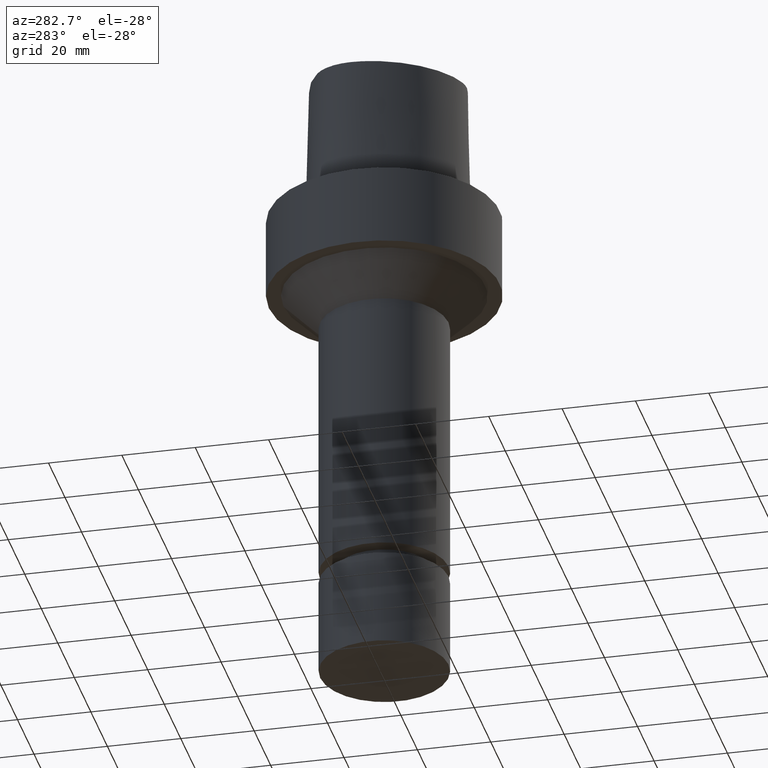
[diagram: clean part render]
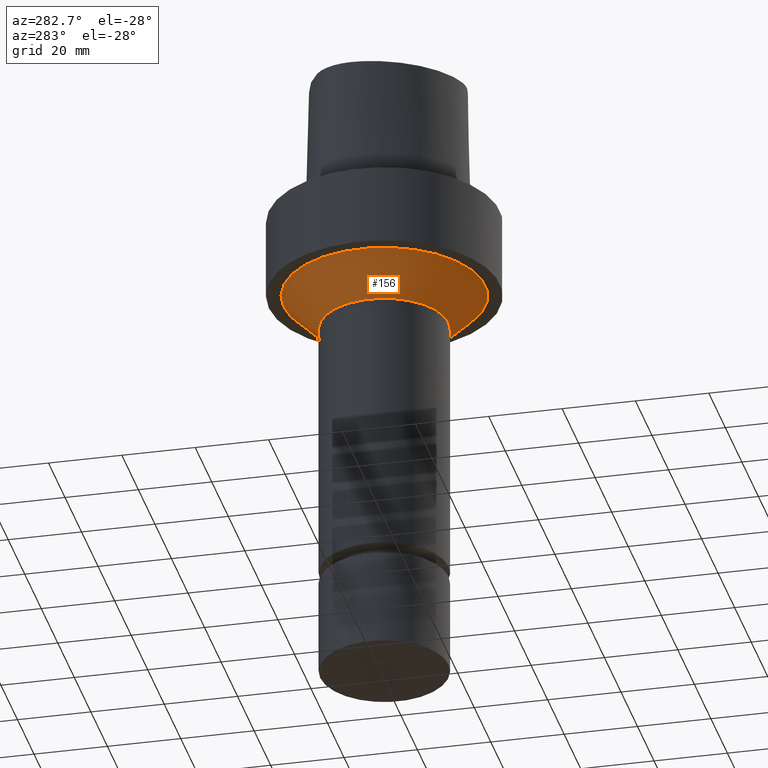
[diagram: same view with one face highlighted and labeled with its STEP entity id]
A machine part, auxiliary view. The second image highlights one B-rep face of the part: STEP entity #156.
In plain terms, the highlighted conical surface has half-angle 45 deg.
Its self-contained STEP definition (entity closure, byte-faithful):
#80=EDGE_CURVE('Unnamed[1]',#203,#203,#204,.T.);
#118=EDGE_CURVE('Unnamed[1]',#261,#261,#262,.T.);
#156=ADVANCED_FACE('Unnamed[1]',(#315,#316),#317,.T.);
#203=VERTEX_POINT('',#365);
#204=CIRCLE('',#366,27.5000000000006);
#261=VERTEX_POINT('',#521);
#262=CIRCLE('',#522,17.4999999999999);
#315=FACE_BOUND('',#692,.T.);
#316=FACE_BOUND('',#693,.T.);
#317=CONICAL_SURFACE('',#694,22.5000000000003,0.785398163397487);
#365=CARTESIAN_POINT('',(1.34711147906211E-015,27.5000000000006,-22.0000000000003));
#366=AXIS2_PLACEMENT_3D('',#746,#747,#748);
#521=CARTESIAN_POINT('',(1.95943487863578E-015,17.4999999999999,-32.0000000000002));
#522=AXIS2_PLACEMENT_3D('',#810,#811,#812);
#692=EDGE_LOOP('',(#866));
#693=EDGE_LOOP('',(#867));
#694=AXIS2_PLACEMENT_3D('',#868,#869,#870);
#746=CARTESIAN_POINT('',(1.34711147906211E-015,2.69422295812421E-015,-22.0000000000003));
#747=DIRECTION('',(6.12323399573677E-017,1.22464679914735E-016,-1.0));
#748=DIRECTION('',(-1.23259516440783E-032,1.0,1.22464679914735E-016));
#810=CARTESIAN_POINT('',(1.95943487863578E-015,3.91886975727156E-015,-32.0000000000002));
#811=DIRECTION('',(6.12323399573677E-017,1.22464679914735E-016,-1.0));
#812=DIRECTION('',(-1.23259516440783E-032,1.0,1.22464679914735E-016));
#866=ORIENTED_EDGE('',*,*,#118,.F.);
#867=ORIENTED_EDGE('',*,*,#80,.T.);
#868=CARTESIAN_POINT('',(1.65327317884894E-015,3.30654635769789E-015,-27.0000000000003));
#869=DIRECTION('',(-6.12323399573677E-017,-1.22464679914735E-016,1.0));
#870=DIRECTION('',(-1.23259516440783E-032,1.0,1.22464679914735E-016));